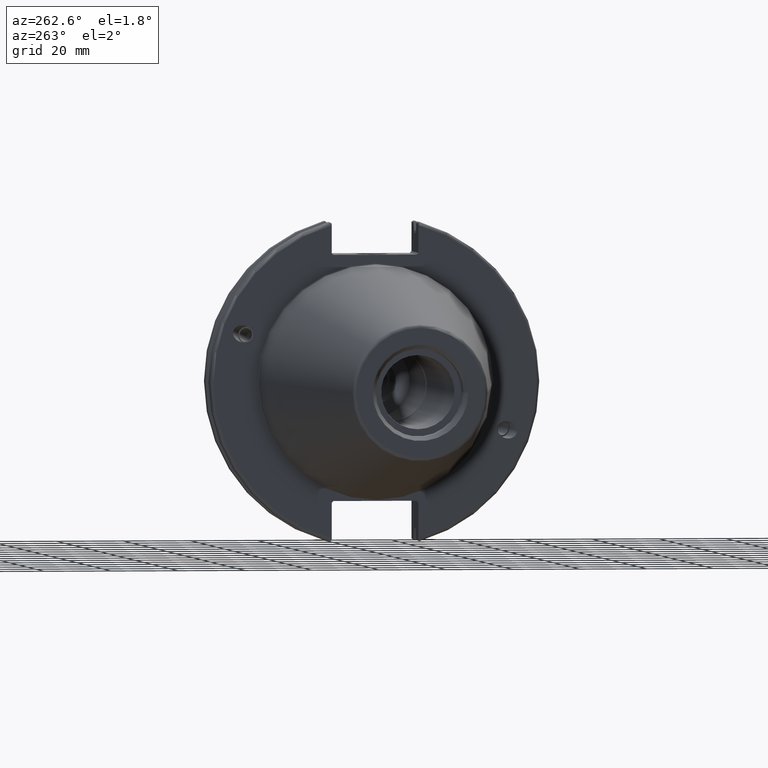
[diagram: clean part render]
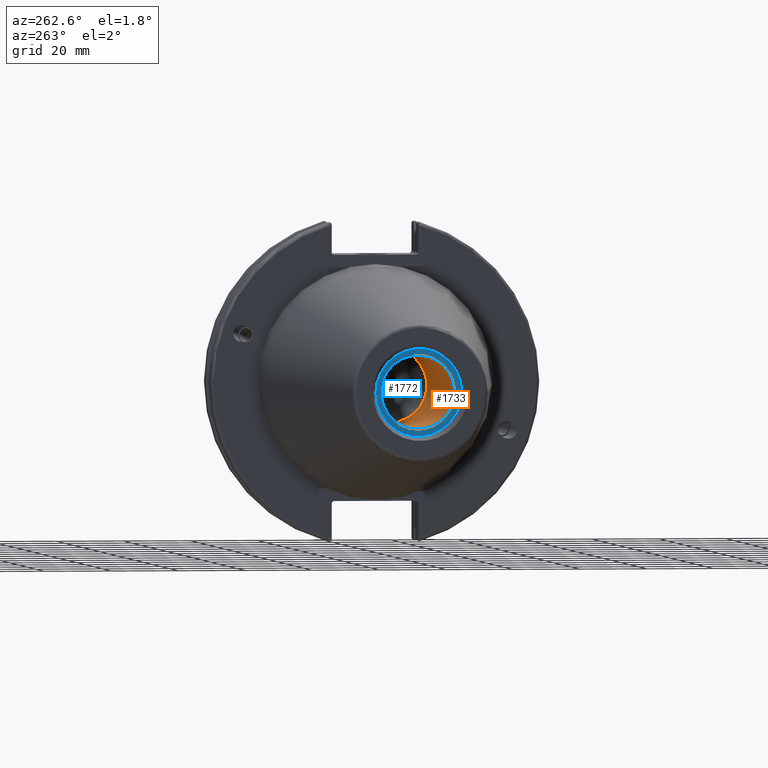
[diagram: same view with the hole feature highlighted: cylindrical wall and planar end face, labeled with their STEP entity ids]
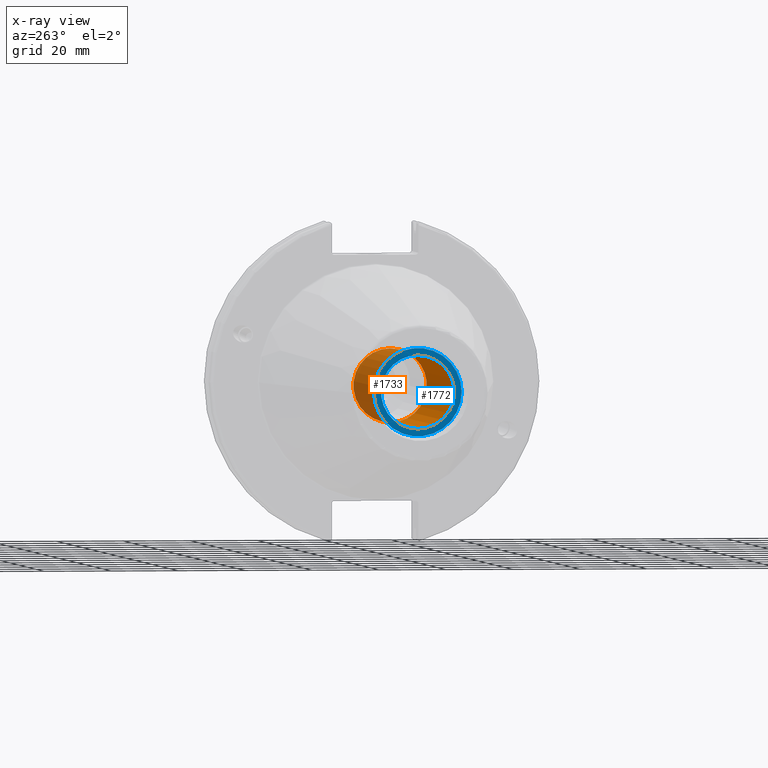
[diagram: x-ray of the same camera — body ghosted, the hole faces saturated]
A machine part, auxiliary view. The highlighted faces form one hole feature of diameter 21.971 mm: the cylindrical wall (entity #1733, orange) and its adjacent planar end face (entity #1772, blue) — they share a circular edge in the B-rep.
The next image is the same camera in x-ray (body ghosted, the hole faces saturated) — the bore reads through the body.
Wall:
#162=LINE('',#3312,#257);
#257=VECTOR('',#2286,10.9855);
#374=CIRCLE('',#1913,10.9855);
#375=CIRCLE('',#1914,10.9855);
#376=CIRCLE('',#1916,10.9855);
#434=CYLINDRICAL_SURFACE('',#1915,10.9855);
#486=FACE_OUTER_BOUND('',#590,.T.);
#590=EDGE_LOOP('',(#1419,#1420,#1421,#1422,#1423));
#810=VERTEX_POINT('',#3304);
#811=VERTEX_POINT('',#3305);
#812=VERTEX_POINT('',#3310);
#1034=EDGE_CURVE('',#810,#811,#374,.T.);
#1036=EDGE_CURVE('',#811,#810,#375,.T.);
#1037=EDGE_CURVE('',#812,#812,#376,.T.);
#1038=EDGE_CURVE('',#812,#811,#162,.T.);
#1419=ORIENTED_EDGE('',*,*,#1037,.F.);
#1420=ORIENTED_EDGE('',*,*,#1038,.T.);
#1421=ORIENTED_EDGE('',*,*,#1034,.F.);
#1422=ORIENTED_EDGE('',*,*,#1036,.F.);
#1423=ORIENTED_EDGE('',*,*,#1038,.F.);
#1733=ADVANCED_FACE('',(#486),#434,.F.);
#1913=AXIS2_PLACEMENT_3D('',#3306,#2277,#2278);
#1914=AXIS2_PLACEMENT_3D('',#3308,#2280,#2281);
#1915=AXIS2_PLACEMENT_3D('',#3309,#2282,#2283);
#1916=AXIS2_PLACEMENT_3D('',#3311,#2284,#2285);
#2277=DIRECTION('center_axis',(-1.,0.,0.));
#2278=DIRECTION('ref_axis',(0.,0.,1.));
#2280=DIRECTION('center_axis',(-1.,0.,0.));
#2281=DIRECTION('ref_axis',(0.,0.,1.));
#2282=DIRECTION('center_axis',(-1.,0.,0.));
#2283=DIRECTION('ref_axis',(0.,0.,1.));
#2284=DIRECTION('center_axis',(1.,0.,0.));
#2285=DIRECTION('ref_axis',(0.,0.,1.));
#2286=DIRECTION('',(1.,0.,0.));
#3304=CARTESIAN_POINT('',(-31.6,0.,10.9855));
#3305=CARTESIAN_POINT('',(-31.6,-1.34533574120333E-15,-10.9855));
#3306=CARTESIAN_POINT('Origin',(-31.6,0.,0.));
#3308=CARTESIAN_POINT('Origin',(-31.6,0.,0.));
#3309=CARTESIAN_POINT('Origin',(-66.6,0.,0.));
#3310=CARTESIAN_POINT('',(-95.25,1.34533574120333E-15,-10.9855));
#3311=CARTESIAN_POINT('Origin',(-95.25,0.,0.));
#3312=CARTESIAN_POINT('',(-66.6,-1.34533574120333E-15,-10.9855));
End face:
#63=FACE_BOUND('',#635,.T.);
#97=PLANE('',#1988);
#376=CIRCLE('',#1916,10.9855);
#410=CIRCLE('',#1989,13.1);
#411=CIRCLE('',#1990,13.1);
#525=FACE_OUTER_BOUND('',#634,.T.);
#634=EDGE_LOOP('',(#1649,#1650));
#635=EDGE_LOOP('',(#1651));
#812=VERTEX_POINT('',#3310);
#876=VERTEX_POINT('',#3628);
#877=VERTEX_POINT('',#3629);
#1037=EDGE_CURVE('',#812,#812,#376,.T.);
#1140=EDGE_CURVE('',#876,#877,#410,.T.);
#1141=EDGE_CURVE('',#877,#876,#411,.T.);
#1649=ORIENTED_EDGE('',*,*,#1140,.F.);
#1650=ORIENTED_EDGE('',*,*,#1141,.F.);
#1651=ORIENTED_EDGE('',*,*,#1037,.T.);
#1772=ADVANCED_FACE('',(#525,#63),#97,.T.);
#1916=AXIS2_PLACEMENT_3D('',#3311,#2284,#2285);
#1988=AXIS2_PLACEMENT_3D('',#3627,#2473,#2474);
#1989=AXIS2_PLACEMENT_3D('',#3630,#2475,#2476);
#1990=AXIS2_PLACEMENT_3D('',#3631,#2477,#2478);
#2284=DIRECTION('center_axis',(1.,0.,0.));
#2285=DIRECTION('ref_axis',(0.,0.,1.));
#2473=DIRECTION('center_axis',(-1.,0.,0.));
#2474=DIRECTION('ref_axis',(0.,0.,1.));
#2475=DIRECTION('center_axis',(1.,0.,0.));
#2476=DIRECTION('ref_axis',(0.,0.,-1.));
#2477=DIRECTION('center_axis',(1.,0.,0.));
#2478=DIRECTION('ref_axis',(0.,0.,-1.));
#3310=CARTESIAN_POINT('',(-95.25,1.34533574120333E-15,-10.9855));
#3311=CARTESIAN_POINT('Origin',(-95.25,0.,0.));
#3627=CARTESIAN_POINT('Origin',(-95.25,13.1,0.));
#3628=CARTESIAN_POINT('',(-95.25,13.1,0.));
#3629=CARTESIAN_POINT('',(-95.25,-13.1,-1.60428730688303E-15));
#3630=CARTESIAN_POINT('Origin',(-95.25,0.,0.));
#3631=CARTESIAN_POINT('Origin',(-95.25,0.,0.));